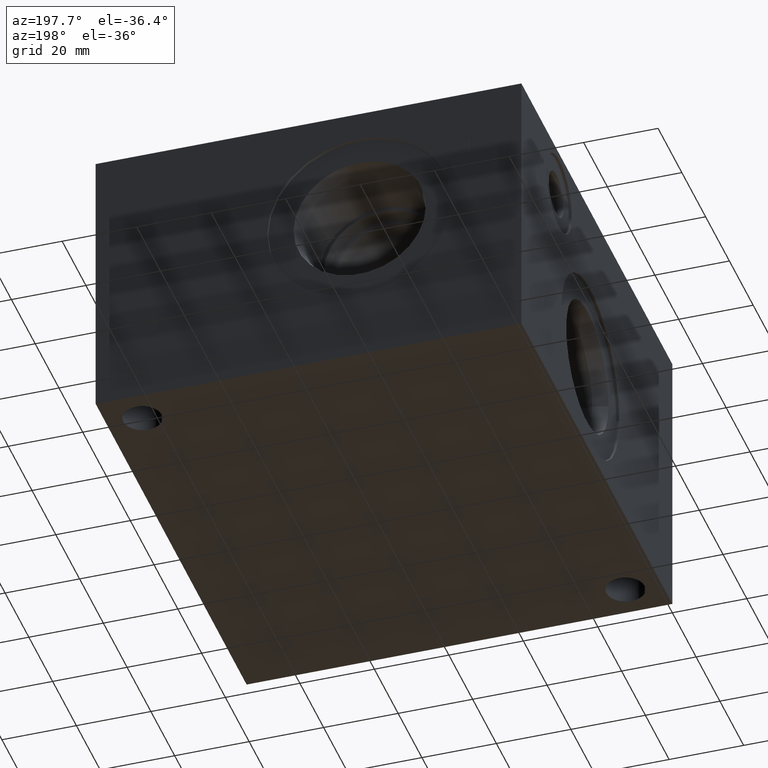
[diagram: clean part render]
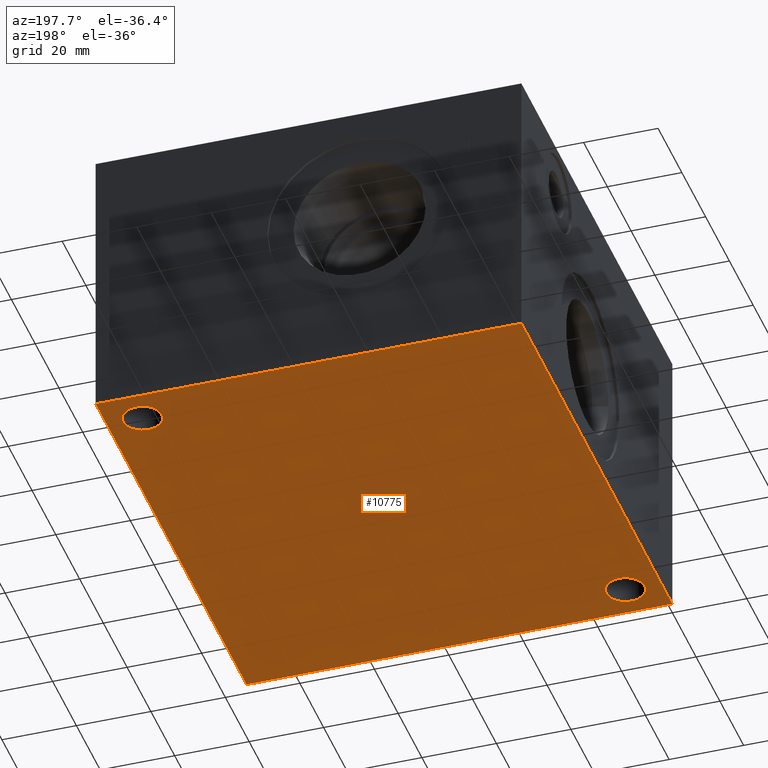
[diagram: same view with one face highlighted and labeled with its STEP entity id]
A machine part, auxiliary view. The second image highlights one B-rep face of the part: STEP entity #10775.
In plain terms, the highlighted planar face has unit normal (0, 0, 1).
Its self-contained STEP definition (entity closure, byte-faithful):
#299=CIRCLE('',#11378,5.1562);
#305=CIRCLE('',#11387,5.1562);
#380=FACE_BOUND('',#1996,.T.);
#381=FACE_BOUND('',#1997,.T.);
#1367=FACE_OUTER_BOUND('',#1995,.T.);
#1995=EDGE_LOOP('',(#9482,#9483,#9484,#9485));
#1996=EDGE_LOOP('',(#9486));
#1997=EDGE_LOOP('',(#9487));
#2066=LINE('',#13889,#3073);
#2154=LINE('',#14077,#3161);
#2482=LINE('',#16689,#3489);
#3003=LINE('',#18530,#4010);
#3073=VECTOR('',#11510,10.);
#3161=VECTOR('',#11670,10.);
#3489=VECTOR('',#12170,10.);
#4010=VECTOR('',#13601,10.);
#4068=VERTEX_POINT('',#13887);
#4069=VERTEX_POINT('',#13888);
#4132=VERTEX_POINT('',#14075);
#4133=VERTEX_POINT('',#14076);
#5014=VERTEX_POINT('',#18508);
#5020=VERTEX_POINT('',#18525);
#5105=EDGE_CURVE('',#4068,#4069,#2066,.T.);
#5197=EDGE_CURVE('',#4132,#4133,#2154,.T.);
#5757=EDGE_CURVE('',#4133,#4068,#2482,.T.);
#6499=EDGE_CURVE('',#5014,#5014,#299,.T.);
#6507=EDGE_CURVE('',#5020,#5020,#305,.T.);
#6508=EDGE_CURVE('',#4069,#4132,#3003,.T.);
#9482=ORIENTED_EDGE('',*,*,#5757,.F.);
#9483=ORIENTED_EDGE('',*,*,#5197,.F.);
#9484=ORIENTED_EDGE('',*,*,#6508,.F.);
#9485=ORIENTED_EDGE('',*,*,#5105,.F.);
#9486=ORIENTED_EDGE('',*,*,#6499,.T.);
#9487=ORIENTED_EDGE('',*,*,#6507,.T.);
#9799=PLANE('',#11393);
#10775=ADVANCED_FACE('',(#1367,#380,#381),#9799,.F.);
#11378=AXIS2_PLACEMENT_3D('',#18510,#13575,#13576);
#11387=AXIS2_PLACEMENT_3D('',#18527,#13595,#13596);
#11393=AXIS2_PLACEMENT_3D('',#18535,#13609,#13610);
#11510=DIRECTION('',(0.,1.,0.));
#11670=DIRECTION('',(0.,-1.,0.));
#12170=DIRECTION('',(1.,0.,0.));
#13575=DIRECTION('center_axis',(0.,0.,1.));
#13576=DIRECTION('ref_axis',(1.,0.,0.));
#13595=DIRECTION('center_axis',(0.,0.,1.));
#13596=DIRECTION('ref_axis',(1.,0.,0.));
#13601=DIRECTION('',(-1.,0.,0.));
#13609=DIRECTION('center_axis',(0.,0.,1.));
#13610=DIRECTION('ref_axis',(1.,0.,0.));
#13887=CARTESIAN_POINT('',(114.3,0.,0.));
#13888=CARTESIAN_POINT('',(114.3,127.,0.));
#13889=CARTESIAN_POINT('',(114.3,0.,0.));
#14075=CARTESIAN_POINT('',(0.,127.,0.));
#14076=CARTESIAN_POINT('',(0.,0.,0.));
#14077=CARTESIAN_POINT('',(0.,127.,0.));
#16689=CARTESIAN_POINT('',(0.,0.,0.));
#18508=CARTESIAN_POINT('',(4.3688,9.525,0.));
#18510=CARTESIAN_POINT('Origin',(9.525,9.525,0.));
#18525=CARTESIAN_POINT('',(99.6188,117.475,0.));
#18527=CARTESIAN_POINT('Origin',(104.775,117.475,0.));
#18530=CARTESIAN_POINT('',(114.3,127.,0.));
#18535=CARTESIAN_POINT('Origin',(57.15,63.5,0.));